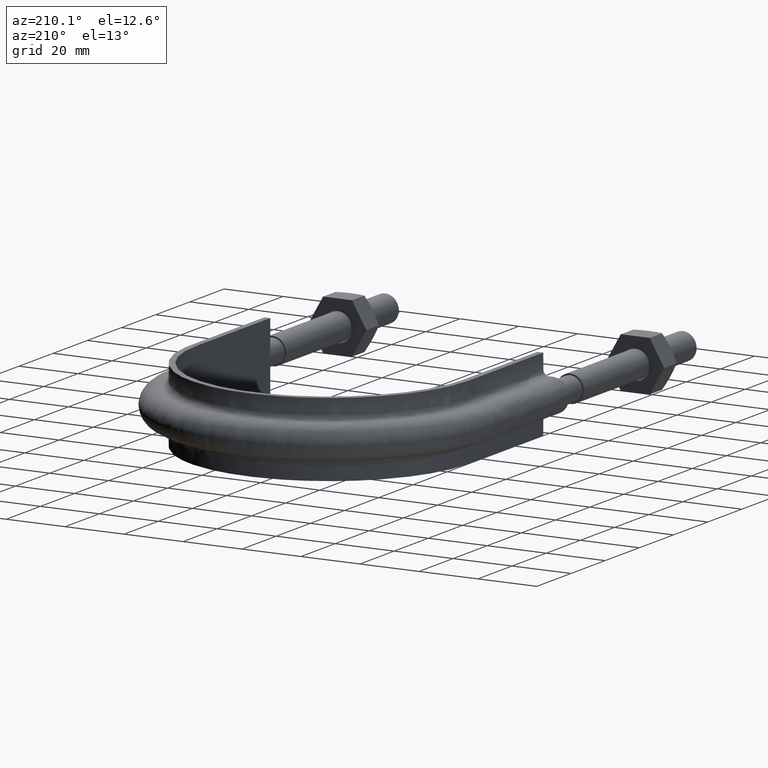
[diagram: clean part render]
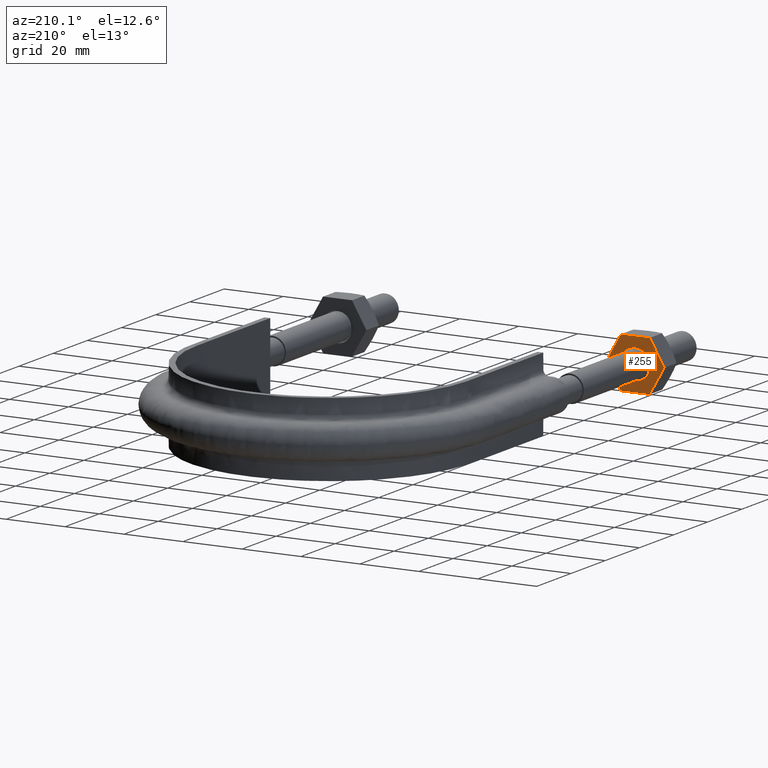
[diagram: same view with one face highlighted and labeled with its STEP entity id]
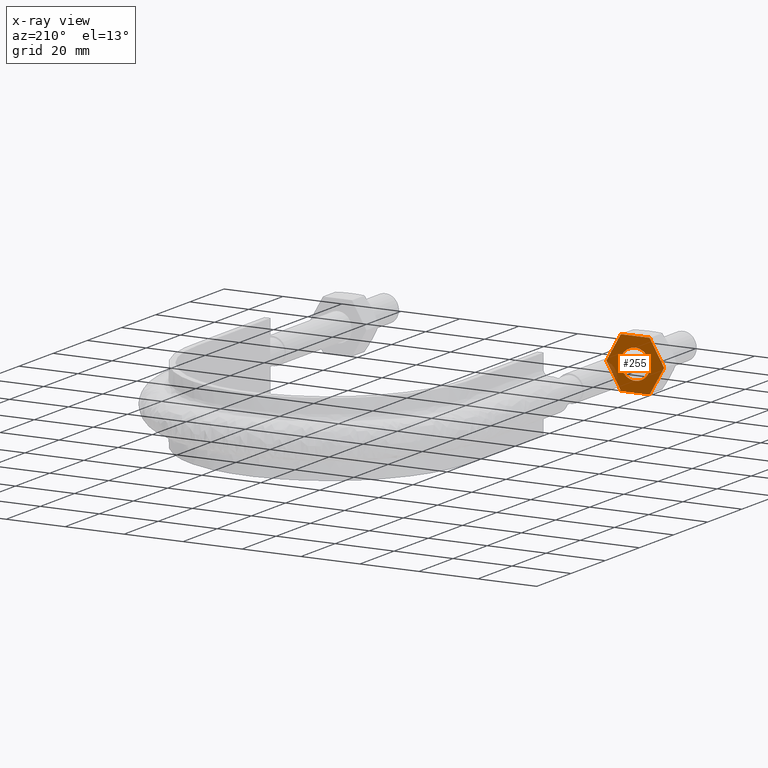
[diagram: x-ray of the same camera — body ghosted, the highlighted face saturated]
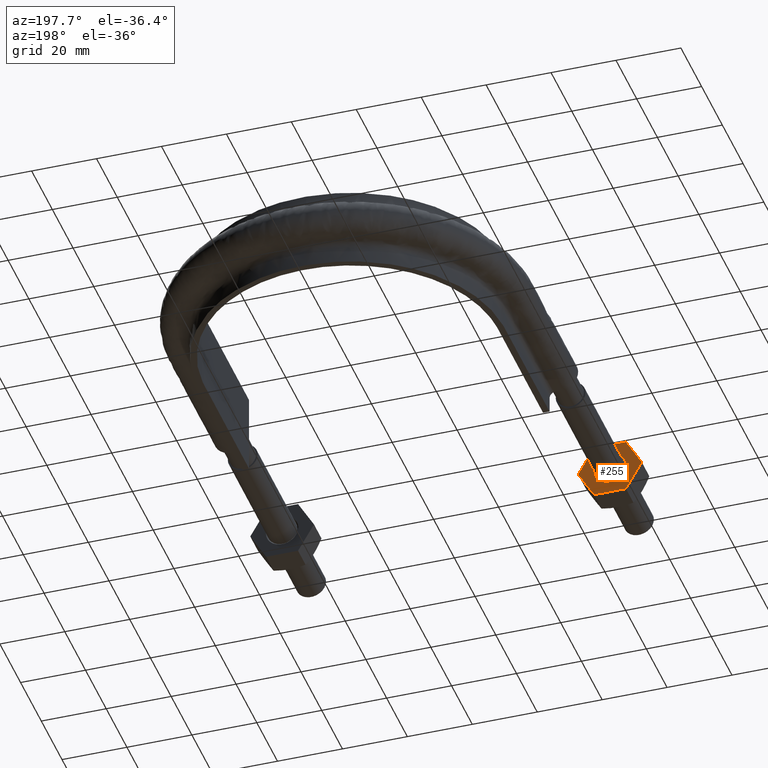
[diagram: same view with one face highlighted and labeled with its STEP entity id]
A machine part, auxiliary view. The second image highlights one B-rep face of the part: STEP entity #255.
The next image is the same camera in x-ray: the body ghosted, the highlighted face saturated — about 4% of this face is hidden behind the body in this view.
A second angle (auxiliary view) of the same face is appended — the face is thin or edge-on in the first view.
In plain terms, the highlighted planar face has unit normal (-0, -1, -0).
Its self-contained STEP definition (entity closure, byte-faithful):
#255 = ADVANCED_FACE( '', ( #379, #380 ), #381, .F. );
#379 = FACE_OUTER_BOUND( '', #1365, .T. );
#380 = FACE_BOUND( '', #1366, .T. );
#381 = PLANE( '', #1367 );
#1365 = EDGE_LOOP( '', ( #1686, #1687, #1688, #1689, #1690, #1691, #1692, #1693, #1694, #1695, #1696, #1697 ) );
#1366 = EDGE_LOOP( '', ( #1698 ) );
#1367 = AXIS2_PLACEMENT_3D( '', #1699, #1700, #1701 );
#1686 = ORIENTED_EDGE( '', *, *, #2059, .T. );
#1687 = ORIENTED_EDGE( '', *, *, #2060, .T. );
#1688 = ORIENTED_EDGE( '', *, *, #2061, .T. );
#1689 = ORIENTED_EDGE( '', *, *, #2062, .T. );
#1690 = ORIENTED_EDGE( '', *, *, #2063, .T. );
#1691 = ORIENTED_EDGE( '', *, *, #2053, .T. );
#1692 = ORIENTED_EDGE( '', *, *, #2049, .T. );
#1693 = ORIENTED_EDGE( '', *, *, #2064, .T. );
#1694 = ORIENTED_EDGE( '', *, *, #2065, .T. );
#1695 = ORIENTED_EDGE( '', *, *, #2066, .T. );
#1696 = ORIENTED_EDGE( '', *, *, #2067, .T. );
#1697 = ORIENTED_EDGE( '', *, *, #2068, .T. );
#1698 = ORIENTED_EDGE( '', *, *, #2057, .F. );
#1699 = CARTESIAN_POINT( '', ( -55.4000000000000, 28.0000000000000, 8.48704895708750 ) );
#1700 = DIRECTION( '', ( -2.44921270764475E-016, -1.00000000000000, -6.12303176911188E-017 ) );
#1701 = DIRECTION( '', ( -1.00000000000000, 2.44921270764475E-016, 0.000000000000000 ) );
#2049 = EDGE_CURVE( '', #2242, #2240, #2243, .F. );
#2053 = EDGE_CURVE( '', #2249, #2242, #2250, .T. );
#2057 = EDGE_CURVE( '', #2254, #2254, #2255, .F. );
#2059 = EDGE_CURVE( '', #2258, #2259, #2260, .F. );
#2060 = EDGE_CURVE( '', #2259, #2261, #2262, .T. );
#2061 = EDGE_CURVE( '', #2261, #2263, #2264, .F. );
#2062 = EDGE_CURVE( '', #2263, #2265, #2266, .T. );
#2063 = EDGE_CURVE( '', #2265, #2249, #2267, .F. );
#2064 = EDGE_CURVE( '', #2240, #2268, #2269, .T. );
#2065 = EDGE_CURVE( '', #2268, #2270, #2271, .F. );
#2066 = EDGE_CURVE( '', #2270, #2272, #2273, .T. );
#2067 = EDGE_CURVE( '', #2272, #2274, #2275, .F. );
#2068 = EDGE_CURVE( '', #2274, #2258, #2276, .T. );
#2240 = VERTEX_POINT( '', #2764 );
#2242 = VERTEX_POINT( '', #2767 );
#2243 = CIRCLE( '', #2768, 9.80000000000000 );
#2249 = VERTEX_POINT( '', #2785 );
#2250 = LINE( '', #2786, #2787 );
#2254 = VERTEX_POINT( '', #2797 );
#2255 = CIRCLE( '', #2798, 5.00000000000000 );
#2258 = VERTEX_POINT( '', #2801 );
#2259 = VERTEX_POINT( '', #2802 );
#2260 = CIRCLE( '', #2803, 9.80000000000000 );
#2261 = VERTEX_POINT( '', #2804 );
#2262 = LINE( '', #2805, #2806 );
#2263 = VERTEX_POINT( '', #2807 );
#2264 = CIRCLE( '', #2808, 9.80000000000000 );
#2265 = VERTEX_POINT( '', #2809 );
#2266 = LINE( '', #2810, #2811 );
#2267 = CIRCLE( '', #2812, 9.80000000000000 );
#2268 = VERTEX_POINT( '', #2813 );
#2269 = LINE( '', #2814, #2815 );
#2270 = VERTEX_POINT( '', #2816 );
#2271 = CIRCLE( '', #2817, 9.80000000000000 );
#2272 = VERTEX_POINT( '', #2818 );
#2273 = LINE( '', #2819, #2820 );
#2274 = VERTEX_POINT( '', #2821 );
#2275 = CIRCLE( '', #2822, 9.80000000000000 );
#2276 = LINE( '', #2823, #2824 );
#2764 = CARTESIAN_POINT( '', ( -55.4224662525163, 28.0000000000000, -8.47403835209863 ) );
#2767 = CARTESIAN_POINT( '', ( -55.3774993593029, 28.0000000000000, -8.50000000000000 ) );
#2768 = AXIS2_PLACEMENT_3D( '', #3135, #3136, #3137 );
#2785 = CARTESIAN_POINT( '', ( -45.6225006406971, 28.0000000000000, -8.50000000000000 ) );
#2786 = CARTESIAN_POINT( '', ( -55.4000000000000, 28.0000000000000, -8.50000000000000 ) );
#2787 = VECTOR( '', #3139, 1000.00000000000 );
#2797 = CARTESIAN_POINT( '', ( -45.5000000000000, 28.0000000000000, 1.97964474674128E-015 ) );
#2798 = AXIS2_PLACEMENT_3D( '', #3144, #3145, #3146 );
#2801 = CARTESIAN_POINT( '', ( -45.6225006406971, 28.0000000000000, 8.50000000000000 ) );
#2802 = CARTESIAN_POINT( '', ( -45.5775337474837, 28.0000000000000, 8.47403835209864 ) );
#2803 = AXIS2_PLACEMENT_3D( '', #3150, #3151, #3152 );
#2804 = CARTESIAN_POINT( '', ( -40.7000343881808, 28.0000000000000, 0.0259616479013421 ) );
#2805 = CARTESIAN_POINT( '', ( -48.0387840678323, 28.0000000000000, 12.7370489570875 ) );
#2806 = VECTOR( '', #3153, 1000.00000000000 );
#2807 = CARTESIAN_POINT( '', ( -40.7000343881808, 28.0000000000000, -0.0259616479013226 ) );
#2808 = AXIS2_PLACEMENT_3D( '', #3154, #3155, #3156 );
#2809 = CARTESIAN_POINT( '', ( -45.5775337474838, 28.0000000000000, -8.47403835209864 ) );
#2810 = CARTESIAN_POINT( '', ( -40.6887840678323, 28.0000000000000, -0.00647552145622947 ) );
#2811 = VECTOR( '', #3157, 1000.00000000000 );
#2812 = AXIS2_PLACEMENT_3D( '', #3158, #3159, #3160 );
#2813 = CARTESIAN_POINT( '', ( -60.2999656118192, 28.0000000000000, -0.0259616479013416 ) );
#2814 = CARTESIAN_POINT( '', ( -62.7612159321677, 28.0000000000000, 4.23704895708751 ) );
#2815 = VECTOR( '', #3161, 1000.00000000000 );
#2816 = CARTESIAN_POINT( '', ( -60.2999656118192, 28.0000000000000, 0.0259616479014852 ) );
#2817 = AXIS2_PLACEMENT_3D( '', #3162, #3163, #3164 );
#2818 = CARTESIAN_POINT( '', ( -55.4224662525164, 28.0000000000000, 8.47403835209857 ) );
#2819 = CARTESIAN_POINT( '', ( -55.4112159321678, 28.0000000000000, 8.49352447854378 ) );
#2820 = VECTOR( '', #3165, 1000.00000000000 );
#2821 = CARTESIAN_POINT( '', ( -55.3774993593029, 28.0000000000000, 8.50000000000000 ) );
#2822 = AXIS2_PLACEMENT_3D( '', #3166, #3167, #3168 );
#2823 = CARTESIAN_POINT( '', ( -55.4000000000000, 28.0000000000000, 8.50000000000000 ) );
#2824 = VECTOR( '', #3169, 1000.00000000000 );
#3135 = CARTESIAN_POINT( '', ( -50.5000000000000, 28.0000000000000, 1.97964474674128E-015 ) );
#3136 = DIRECTION( '', ( -2.44921270764475E-016, -1.00000000000000, -6.12303176911188E-017 ) );
#3137 = DIRECTION( '', ( 1.00000000000000, -2.44921270764475E-016, 0.000000000000000 ) );
#3139 = DIRECTION( '', ( -1.00000000000000, 2.44921270764475E-016, 1.15976417929317E-032 ) );
#3144 = CARTESIAN_POINT( '', ( -50.5000000000000, 28.0000000000000, 1.97964474674128E-015 ) );
#3145 = DIRECTION( '', ( -2.44921270764475E-016, -1.00000000000000, -6.12303176911188E-017 ) );
#3146 = DIRECTION( '', ( 1.00000000000000, -2.44921270764475E-016, 0.000000000000000 ) );
#3150 = CARTESIAN_POINT( '', ( -50.5000000000000, 28.0000000000000, 1.97964474674128E-015 ) );
#3151 = DIRECTION( '', ( -2.44921270764475E-016, -1.00000000000000, -6.12303176911188E-017 ) );
#3152 = DIRECTION( '', ( 1.00000000000000, -2.44921270764475E-016, 0.000000000000000 ) );
#3153 = DIRECTION( '', ( 0.500000000000000, -6.94336247799368E-017, -0.866025403784439 ) );
#3154 = CARTESIAN_POINT( '', ( -50.5000000000000, 28.0000000000000, 1.97964474674128E-015 ) );
#3155 = DIRECTION( '', ( -2.44921270764475E-016, -1.00000000000000, -6.12303176911188E-017 ) );
#3156 = DIRECTION( '', ( 1.00000000000000, -2.44921270764475E-016, 0.000000000000000 ) );
#3157 = DIRECTION( '', ( -0.500000000000000, 1.75487645984538E-016, -0.866025403784439 ) );
#3158 = CARTESIAN_POINT( '', ( -50.5000000000000, 28.0000000000000, 1.97964474674128E-015 ) );
#3159 = DIRECTION( '', ( -2.44921270764475E-016, -1.00000000000000, -6.12303176911188E-017 ) );
#3160 = DIRECTION( '', ( 1.00000000000000, -2.44921270764475E-016, 0.000000000000000 ) );
#3161 = DIRECTION( '', ( -0.500000000000000, 6.94336247799368E-017, 0.866025403784439 ) );
#3162 = CARTESIAN_POINT( '', ( -50.5000000000000, 28.0000000000000, 1.97964474674128E-015 ) );
#3163 = DIRECTION( '', ( -2.44921270764475E-016, -1.00000000000000, -6.12303176911188E-017 ) );
#3164 = DIRECTION( '', ( 1.00000000000000, -2.44921270764475E-016, 0.000000000000000 ) );
#3165 = DIRECTION( '', ( 0.500000000000000, -1.75487645984538E-016, 0.866025403784439 ) );
#3166 = CARTESIAN_POINT( '', ( -50.5000000000000, 28.0000000000000, 1.97964474674128E-015 ) );
#3167 = DIRECTION( '', ( -2.44921270764475E-016, -1.00000000000000, -6.12303176911188E-017 ) );
#3168 = DIRECTION( '', ( 1.00000000000000, -2.44921270764475E-016, 0.000000000000000 ) );
#3169 = DIRECTION( '', ( 1.00000000000000, -2.44921270764475E-016, -5.55111512312578E-017 ) );